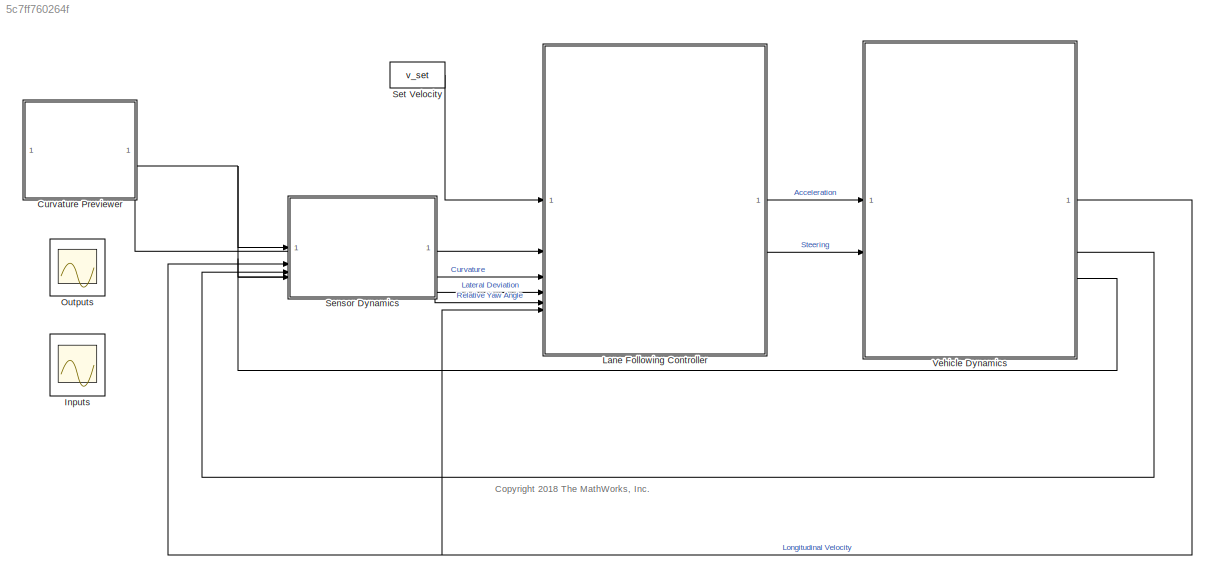
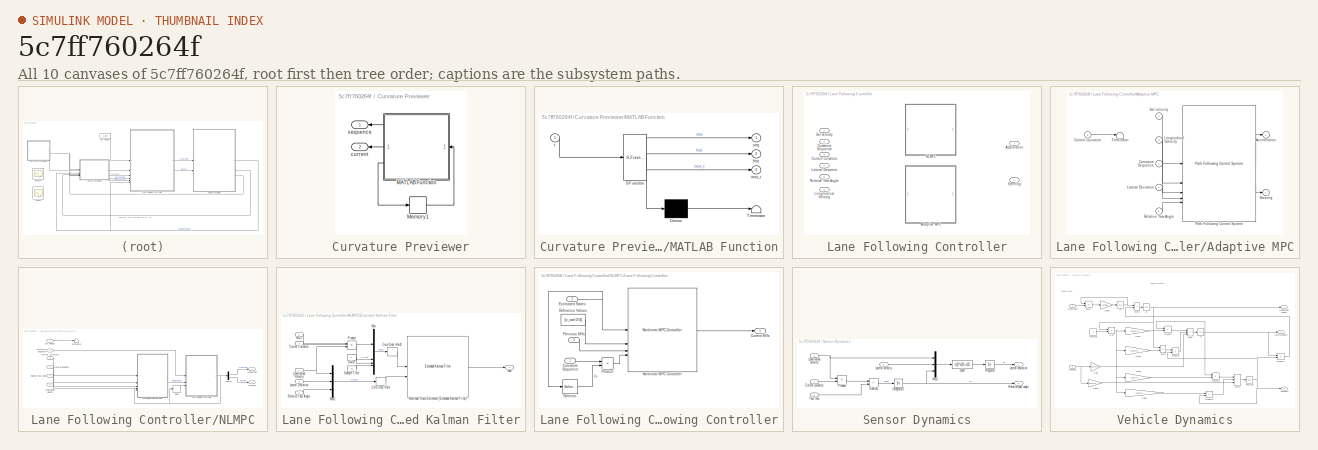
[diagram: thumbnail index - all 10 canvases of the model, root first then tree order]
MODEL slx_5c7ff760264f
KIND model
CONFIG AbsTol = auto
CONFIG EnableMultiTasking = off
CONFIG FixedStep = 0.1
CONFIG MaxStep = auto
CONFIG MinStep = auto
CONFIG PreLoadFcn = LaneFollowingUsingNMPCData
CONFIG RelTol = 1e-3
CONFIG SampleTimeConstraint = Unconstrained
CONFIG SolverName = VariableStepAuto
CONFIG StartTime = 0.0
CONFIG StopTime = Duration
BLOCK [SubSystem] Curvature Previewer
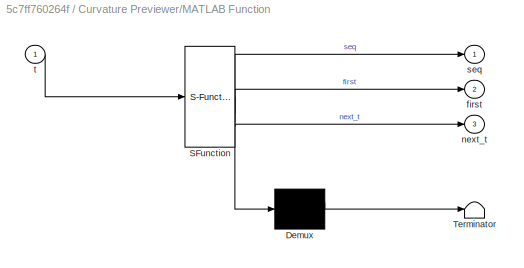
BLOCK [SubSystem] Curvature Previewer/MATLAB Function
  ErrorFcn = Stateflow.Translate.translate
  PermitHierarchicalResolution = ExplicitOnly
  SFBlockType = MATLAB Function
  TreatAsAtomicUnit = on
BLOCK [Demux] Curvature Previewer/MATLAB Function/ Demux 
  Outputs = 1
BLOCK [S-Function] Curvature Previewer/MATLAB Function/ SFunction 
  EnableBusSupport = off
  FunctionName = sf_sfun
  Parameters = data,steps
  PortCounts = [1 4]
  SFcnIsStateOwnerBlock = off
  SFunctionDeploymentMode = off
  Tag = Stateflow S-Function 1
BLOCK [Terminator] Curvature Previewer/MATLAB Function/ Terminator 
BLOCK [Outport] Curvature Previewer/MATLAB Function/first
  Port = 2
  VectorParamsAs1DForOutWhenUnconnected = off
BLOCK [Outport] Curvature Previewer/MATLAB Function/next_t
  Port = 3
  VectorParamsAs1DForOutWhenUnconnected = off
BLOCK [Outport] Curvature Previewer/MATLAB Function/seq
  VectorParamsAs1DForOutWhenUnconnected = off
BLOCK [Inport] Curvature Previewer/MATLAB Function/t
BLOCK [Memory] Curvature Previewer/Memory1
  InheritSampleTime = on
  LinearizeAsDelay = on
BLOCK [Outport] Curvature Previewer/current
  Port = 2
  VectorParamsAs1DForOutWhenUnconnected = off
BLOCK [Outport] Curvature Previewer/sequence
  VectorParamsAs1DForOutWhenUnconnected = off
BLOCK [Scope] Inputs
  Floating = on
  NumInputPorts = 1
  ScopeSpecificationString = Simulink.scopes.TimeScopeBlockCfg('CurrentConfiguration', extmgr.ConfigurationSet(extmgr.Configuration('Core','General UI',true),extmgr.Configuration('Core','Source UI',true),extmgr.Configuration('Sources','WiredSimulink',true,'DataLoggingVariableName','ScopeData1'),extmgr.Configuration('Visuals','Time Domain',true,'SerializedDisplays',{struct('MinYLimReal','-0.19396','MaxYLimReal','0.11266','YLab...<+2759ch>
BLOCK [SubSystem] Lane Following Controller
  Variant = on
BLOCK [Outport] Lane Following Controller/Acceleration
  VectorParamsAs1DForOutWhenUnconnected = off
BLOCK [SubSystem] Lane Following Controller/Adaptive MPC
  VariantControl = controller_type == 2
BLOCK [Outport] Lane Following Controller/Adaptive MPC/Acceleration
  VectorParamsAs1DForOutWhenUnconnected = off
BLOCK [Inport] Lane Following Controller/Adaptive MPC/Current Curvature
  Port = 3
BLOCK [Inport] Lane Following Controller/Adaptive MPC/Curvature Sequence
  Port = 2
BLOCK [Inport] Lane Following Controller/Adaptive MPC/Lateral Deviation
  Port = 4
BLOCK [Inport] Lane Following Controller/Adaptive MPC/Longitudinal Velocity
  Port = 6
BLOCK [Reference] Lane Following Controller/Adaptive MPC/Path Following Control System  REF=mpcadaslib/Path Following Control System
  SourceBlock = mpcadaslib/Path Following Control System
  SourceType = Path following control (PFC) system
BLOCK [Inport] Lane Following Controller/Adaptive MPC/Relative Yaw Angle
  Port = 5
BLOCK [Inport] Lane Following Controller/Adaptive MPC/Set velocity
BLOCK [Outport] Lane Following Controller/Adaptive MPC/Steering
  Port = 2
  VectorParamsAs1DForOutWhenUnconnected = off
BLOCK [Terminator] Lane Following Controller/Adaptive MPC/Terminator
BLOCK [Inport] Lane Following Controller/Current Curvature
  Port = 3
BLOCK [Inport] Lane Following Controller/Curvature Sequence
  Port = 2
BLOCK [Inport] Lane Following Controller/Lateral Deviation
  Port = 4
BLOCK [Inport] Lane Following Controller/Longitudinal Velocity
  Port = 6
BLOCK [SubSystem] Lane Following Controller/NLMPC
  VariantControl = controller_type ==1
BLOCK [Outport] Lane Following Controller/NLMPC/Acceleration
  VectorParamsAs1DForOutWhenUnconnected = off
BLOCK [Inport] Lane Following Controller/NLMPC/Current Curvature
  Port = 3
BLOCK [Inport] Lane Following Controller/NLMPC/Curvature Sequence
  Port = 2
BLOCK [Delay] Lane Following Controller/NLMPC/Delay
  DelayLength = 1
  InitialCondition = [0.2 0.3]
  InputPortMap = u0
BLOCK [Demux] Lane Following Controller/NLMPC/Demux
  Outputs = 2
BLOCK [SubSystem] Lane Following Controller/NLMPC/Extended Kalman Filter
BLOCK [Inport] Lane Following Controller/NLMPC/Extended Kalman Filter/Current Curvature
BLOCK [Inport] Lane Following Controller/NLMPC/Extended Kalman Filter/Lateral Deviation
  Port = 2
BLOCK [Inport] Lane Following Controller/NLMPC/Extended Kalman Filter/Longitudinal Velocity
  Port = 4
BLOCK [Inport] Lane Following Controller/NLMPC/Extended Kalman Filter/MVs
  Port = 5
BLOCK [Mux] Lane Following Controller/NLMPC/Extended Kalman Filter/Mux
  DisplayOption = bar
BLOCK [Mux] Lane Following Controller/NLMPC/Extended Kalman Filter/Mux1
  DisplayOption = bar
  Inputs = 3
BLOCK [Constant] Lane Following Controller/NLMPC/Extended Kalman Filter/Noise
  Value = 0
BLOCK [Reference] Lane Following Controller/NLMPC/Extended Kalman Filter/Nonlinear State Estimator (Extended Kalman Filter)  REF=sharedTrackingLibrary/Extended Kalman Filter
  NameLocation = top
  SourceBlock = sharedTrackingLibrary/Extended Kalman Filter
  SourceType = Extended Kalman Filter
BLOCK [Product] Lane Following Controller/NLMPC/Extended Kalman Filter/Product
BLOCK [Inport] Lane Following Controller/NLMPC/Extended Kalman Filter/Relative Yaw Angle
  Port = 3
BLOCK [Constant] Lane Following Controller/NLMPC/Extended Kalman Filter/Sample Time
  Value = Ts
BLOCK [ZeroOrderHold] Lane Following Controller/NLMPC/Extended Kalman Filter/Zero-Order Hold
  NameLocation = top
  SampleTime = Ts
BLOCK [ZeroOrderHold] Lane Following Controller/NLMPC/Extended Kalman Filter/Zero-Order Hold1
  NameLocation = top
  SampleTime = Ts
BLOCK [Outport] Lane Following Controller/NLMPC/Extended Kalman Filter/xhat
  VectorParamsAs1DForOutWhenUnconnected = off
BLOCK [SubSystem] Lane Following Controller/NLMPC/Lane Following Controller
BLOCK [Outport] Lane Following Controller/NLMPC/Lane Following Controller/Current MVs
  VectorParamsAs1DForOutWhenUnconnected = off
BLOCK [Inport] Lane Following Controller/NLMPC/Lane Following Controller/Curvature Sequence
BLOCK [Inport] Lane Following Controller/NLMPC/Lane Following Controller/Estimated States
  Port = 2
BLOCK [Reference] Lane Following Controller/NLMPC/Lane Following Controller/Nonlinear MPC Controller  REF=mpclib/Nonlinear MPC Controller  (lib defined in mdl_ae329e0e0455)
  SCDEnableBlockLinearizationSpecification = on
  SourceBlock = mpclib/Nonlinear MPC Controller
  SourceType = NonlinearMPC
BLOCK [Inport] Lane Following Controller/NLMPC/Lane Following Controller/Previous MVs
  Port = 3
BLOCK [Product] Lane Following Controller/NLMPC/Lane Following Controller/Product
BLOCK [Constant] Lane Following Controller/NLMPC/Lane Following Controller/Reference Values
  Value = [v_set 0 0]
  VectorParams1D = off
BLOCK [Selector] Lane Following Controller/NLMPC/Lane Following Controller/Selector
  IndexOptions = Index vector (dialog)
  Indices = [3]
  InputPortWidth = 7
  OutputSizes = 1
BLOCK [Inport] Lane Following Controller/NLMPC/Lateral Deviation
  Port = 4
BLOCK [Inport] Lane Following Controller/NLMPC/Longitudinal Velocity
  Port = 6
BLOCK [Inport] Lane Following Controller/NLMPC/Relative Yaw Angle
  Port = 5
BLOCK [Inport] Lane Following Controller/NLMPC/Set velocity
BLOCK [Outport] Lane Following Controller/NLMPC/Steering
  Port = 2
  VectorParamsAs1DForOutWhenUnconnected = off
BLOCK [Terminator] Lane Following Controller/NLMPC/Terminator
BLOCK [Inport] Lane Following Controller/Relative Yaw Angle
  Port = 5
BLOCK [Inport] Lane Following Controller/Set velocity
BLOCK [Outport] Lane Following Controller/Steering
  Port = 2
  VectorParamsAs1DForOutWhenUnconnected = off
BLOCK [Scope] Outputs
  Floating = on
  NumInputPorts = 1
  ScopeSpecificationString = Simulink.scopes.TimeScopeBlockCfg('CurrentConfiguration', extmgr.ConfigurationSet(extmgr.Configuration('Core','General UI',true),extmgr.Configuration('Core','Source UI',true),extmgr.Configuration('Sources','WiredSimulink',true),extmgr.Configuration('Visuals','Time Domain',true,'SerializedDisplays',{struct('MinYLimReal','14.34928','MaxYLimReal','20.85652','YLabelReal','','MinYLimMag','14.34928','Ma...<+2749ch>
BLOCK [SubSystem] Sensor Dynamics
BLOCK [Inport] Sensor Dynamics/Current curvature
BLOCK [Integrator] Sensor Dynamics/Integrator
BLOCK [Integrator] Sensor Dynamics/Integrator2
BLOCK [Outport] Sensor Dynamics/Lateral deviation
  VectorParamsAs1DForOutWhenUnconnected = off
BLOCK [Inport] Sensor Dynamics/Lateral velocity
  Port = 3
BLOCK [Inport] Sensor Dynamics/Longitudinal velocity
  Port = 2
BLOCK [Mux] Sensor Dynamics/Mux1
  DisplayOption = bar
  Inputs = [1 1 1]
BLOCK [Product] Sensor Dynamics/Product
BLOCK [Outport] Sensor Dynamics/Relative yaw angle
  Port = 2
  VectorParamsAs1DForOutWhenUnconnected = off
BLOCK [Sum] Sensor Dynamics/Subtract
  IconShape = rectangular
  Inputs = -+
BLOCK [Inport] Sensor Dynamics/Yaw rate
  Port = 4
BLOCK [Fcn] Sensor Dynamics/e1dot
  Expr = u(1)*u(3)+u(2)
BLOCK [Constant] Set Velocity
  Value = v_set
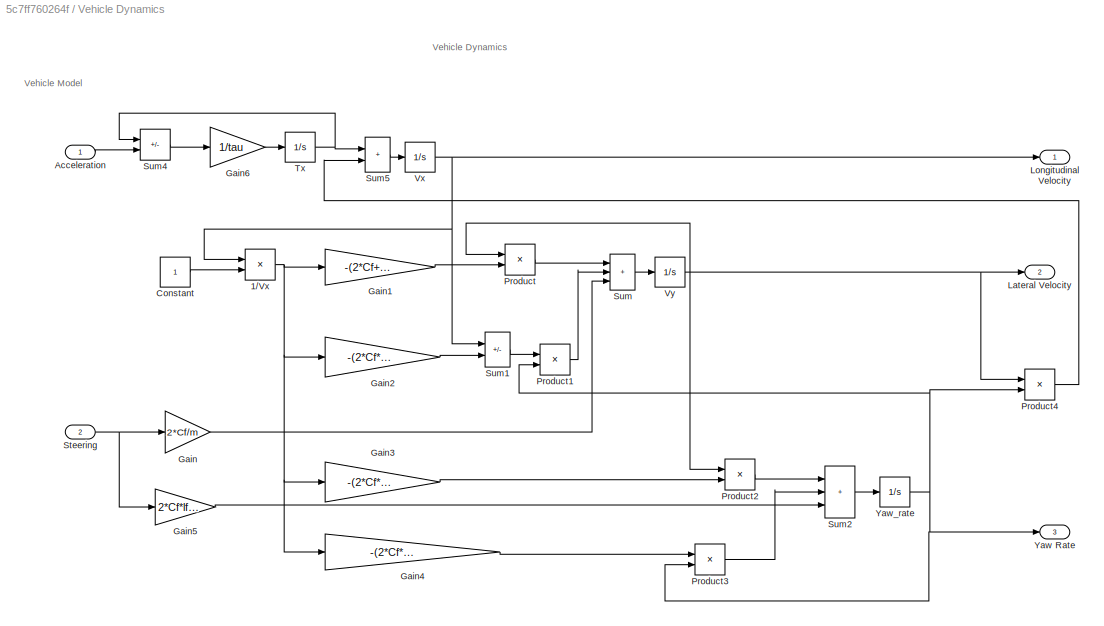
BLOCK [SubSystem] Vehicle Dynamics
BLOCK [Product] Vehicle Dynamics/1//Vx
  Inputs = /*
BLOCK [Inport] Vehicle Dynamics/Acceleration
BLOCK [Constant] Vehicle Dynamics/Constant
BLOCK [Gain] Vehicle Dynamics/Gain
  Gain = 2*Cf/m
BLOCK [Gain] Vehicle Dynamics/Gain1
  Gain = -(2*Cf+2*Cr)/m
BLOCK [Gain] Vehicle Dynamics/Gain2
  Gain = -(2*Cf*lf-2*Cr*lr)/m
BLOCK [Gain] Vehicle Dynamics/Gain3
  Gain = -(2*Cf*lf-2*Cr*lr)/Iz
BLOCK [Gain] Vehicle Dynamics/Gain4
  Gain = -(2*Cf*lf^2+2*Cr*lr^2)/Iz
BLOCK [Gain] Vehicle Dynamics/Gain5
  Gain = 2*Cf*lf/Iz
BLOCK [Gain] Vehicle Dynamics/Gain6
  Gain = 1/tau
BLOCK [Outport] Vehicle Dynamics/Lateral Velocity
  Port = 2
  VectorParamsAs1DForOutWhenUnconnected = off
BLOCK [Outport] Vehicle Dynamics/Longitudinal Velocity
  VectorParamsAs1DForOutWhenUnconnected = off
BLOCK [Product] Vehicle Dynamics/Product
BLOCK [Product] Vehicle Dynamics/Product1
BLOCK [Product] Vehicle Dynamics/Product2
BLOCK [Product] Vehicle Dynamics/Product3
BLOCK [Product] Vehicle Dynamics/Product4
BLOCK [Inport] Vehicle Dynamics/Steering
  Port = 2
BLOCK [Sum] Vehicle Dynamics/Sum
  IconShape = rectangular
  Inputs = +++
BLOCK [Sum] Vehicle Dynamics/Sum1
  IconShape = rectangular
  Inputs = -+
BLOCK [Sum] Vehicle Dynamics/Sum2
  IconShape = rectangular
  Inputs = +++
BLOCK [Sum] Vehicle Dynamics/Sum4
  IconShape = rectangular
  Inputs = -+
BLOCK [Sum] Vehicle Dynamics/Sum5
  IconShape = rectangular
BLOCK [Integrator] Vehicle Dynamics/Tx
BLOCK [Integrator] Vehicle Dynamics/Vx
  InitialCondition = v0
BLOCK [Integrator] Vehicle Dynamics/Vy
BLOCK [Outport] Vehicle Dynamics/Yaw Rate
  Port = 3
  VectorParamsAs1DForOutWhenUnconnected = off
BLOCK [Integrator] Vehicle Dynamics/Yaw_rate 
ANNOTATION (root): <copyright redacted>
ANNOTATION Vehicle Dynamics: Vehicle Dynamics
ANNOTATION Vehicle Dynamics: Vehicle Model
LINE Curvature Previewer/MATLAB Function:1 -> Curvature Previewer/sequence:1
LINE Curvature Previewer/MATLAB Function:2 -> Curvature Previewer/current:1
LINE Curvature Previewer/MATLAB Function:3 -> Curvature Previewer/Memory1:1
LINE Curvature Previewer/Memory1:1 -> Curvature Previewer/MATLAB Function:1
LINE Curvature Previewer:1 -> Lane Following Controller:2
NET Curvature Previewer:2 -> Lane Following Controller:3, Sensor Dynamics:1
LINE Lane Following Controller/Adaptive MPC/Current Curvature:1 -> Lane Following Controller/Adaptive MPC/Terminator:1
LINE Lane Following Controller/Adaptive MPC/Curvature Sequence:1 -> Lane Following Controller/Adaptive MPC/Path Following Control System:3
LINE Lane Following Controller/Adaptive MPC/Lateral Deviation:1 -> Lane Following Controller/Adaptive MPC/Path Following Control System:4
LINE Lane Following Controller/Adaptive MPC/Longitudinal Velocity:1 -> Lane Following Controller/Adaptive MPC/Path Following Control System:2
LINE Lane Following Controller/Adaptive MPC/Path Following Control System:1 -> Lane Following Controller/Adaptive MPC/Acceleration:1
LINE Lane Following Controller/Adaptive MPC/Path Following Control System:2 -> Lane Following Controller/Adaptive MPC/Steering:1
LINE Lane Following Controller/Adaptive MPC/Relative Yaw Angle:1 -> Lane Following Controller/Adaptive MPC/Path Following Control System:5
LINE Lane Following Controller/Adaptive MPC/Set velocity:1 -> Lane Following Controller/Adaptive MPC/Path Following Control System:1
LINE Lane Following Controller/NLMPC/Current Curvature:1 -> Lane Following Controller/NLMPC/Extended Kalman Filter:1
LINE Lane Following Controller/NLMPC/Curvature Sequence:1 -> Lane Following Controller/NLMPC/Lane Following Controller:1
LINE Lane Following Controller/NLMPC/Delay:1 -> Lane Following Controller/NLMPC/Lane Following Controller:3
LINE Lane Following Controller/NLMPC/Demux:1 -> Lane Following Controller/NLMPC/Acceleration:1
LINE Lane Following Controller/NLMPC/Demux:2 -> Lane Following Controller/NLMPC/Steering:1
LINE Lane Following Controller/NLMPC/Extended Kalman Filter/Current Curvature:1 -> Lane Following Controller/NLMPC/Extended Kalman Filter/Product:1
LINE Lane Following Controller/NLMPC/Extended Kalman Filter/Lateral Deviation:1 -> Lane Following Controller/NLMPC/Extended Kalman Filter/Mux1:2
NET Lane Following Controller/NLMPC/Extended Kalman Filter/Longitudinal Velocity:1 -> Lane Following Controller/NLMPC/Extended Kalman Filter/Mux1:1, Lane Following Controller/NLMPC/Extended Kalman Filter/Product:2
LINE Lane Following Controller/NLMPC/Extended Kalman Filter/MVs:1 -> Lane Following Controller/NLMPC/Extended Kalman Filter/Mux:1
LINE Lane Following Controller/NLMPC/Extended Kalman Filter/Mux1:1 -> Lane Following Controller/NLMPC/Extended Kalman Filter/Zero-Order Hold:1
LINE Lane Following Controller/NLMPC/Extended Kalman Filter/Mux:1 -> Lane Following Controller/NLMPC/Extended Kalman Filter/Zero-Order Hold1:1
LINE Lane Following Controller/NLMPC/Extended Kalman Filter/Noise:1 -> Lane Following Controller/NLMPC/Extended Kalman Filter/Mux:3
LINE Lane Following Controller/NLMPC/Extended Kalman Filter/Nonlinear State Estimator (Extended Kalman Filter):1 -> Lane Following Controller/NLMPC/Extended Kalman Filter/xhat:1
LINE Lane Following Controller/NLMPC/Extended Kalman Filter/Product:1 -> Lane Following Controller/NLMPC/Extended Kalman Filter/Mux:2
LINE Lane Following Controller/NLMPC/Extended Kalman Filter/Relative Yaw Angle:1 -> Lane Following Controller/NLMPC/Extended Kalman Filter/Mux1:3
LINE Lane Following Controller/NLMPC/Extended Kalman Filter/Sample Time:1 -> Lane Following Controller/NLMPC/Extended Kalman Filter/Mux:4
LINE Lane Following Controller/NLMPC/Extended Kalman Filter/Zero-Order Hold1:1 -> Lane Following Controller/NLMPC/Extended Kalman Filter/Nonlinear State Estimator (Extended Kalman Filter):1
LINE Lane Following Controller/NLMPC/Extended Kalman Filter/Zero-Order Hold:1 -> Lane Following Controller/NLMPC/Extended Kalman Filter/Nonlinear State Estimator (Extended Kalman Filter):2
LINE Lane Following Controller/NLMPC/Extended Kalman Filter:1 -> Lane Following Controller/NLMPC/Lane Following Controller:2
LINE Lane Following Controller/NLMPC/Lane Following Controller/Curvature Sequence:1 -> Lane Following Controller/NLMPC/Lane Following Controller/Product:1
NET Lane Following Controller/NLMPC/Lane Following Controller/Estimated States:1 -> Lane Following Controller/NLMPC/Lane Following Controller/Nonlinear MPC Controller:1, Lane Following Controller/NLMPC/Lane Following Controller/Selector:1
LINE Lane Following Controller/NLMPC/Lane Following Controller/Nonlinear MPC Controller:1 -> Lane Following Controller/NLMPC/Lane Following Controller/Current MVs:1
LINE Lane Following Controller/NLMPC/Lane Following Controller/Previous MVs:1 -> Lane Following Controller/NLMPC/Lane Following Controller/Nonlinear MPC Controller:3
LINE Lane Following Controller/NLMPC/Lane Following Controller/Product:1 -> Lane Following Controller/NLMPC/Lane Following Controller/Nonlinear MPC Controller:4
LINE Lane Following Controller/NLMPC/Lane Following Controller/Reference Values:1 -> Lane Following Controller/NLMPC/Lane Following Controller/Nonlinear MPC Controller:2
LINE Lane Following Controller/NLMPC/Lane Following Controller/Selector:1 -> Lane Following Controller/NLMPC/Lane Following Controller/Product:2
NET Lane Following Controller/NLMPC/Lane Following Controller:1 -> Lane Following Controller/NLMPC/Delay:1, Lane Following Controller/NLMPC/Demux:1, Lane Following Controller/NLMPC/Extended Kalman Filter:5
LINE Lane Following Controller/NLMPC/Lateral Deviation:1 -> Lane Following Controller/NLMPC/Extended Kalman Filter:2
LINE Lane Following Controller/NLMPC/Longitudinal Velocity:1 -> Lane Following Controller/NLMPC/Extended Kalman Filter:4
LINE Lane Following Controller/NLMPC/Relative Yaw Angle:1 -> Lane Following Controller/NLMPC/Extended Kalman Filter:3
LINE Lane Following Controller/NLMPC/Set velocity:1 -> Lane Following Controller/NLMPC/Terminator:1
LINE Lane Following Controller:1 -> Vehicle Dynamics:1
LINE Lane Following Controller:2 -> Vehicle Dynamics:2
LINE Sensor Dynamics/Current curvature:1 -> Sensor Dynamics/Product:2
NET Sensor Dynamics/Integrator2:1 -> Sensor Dynamics/Mux1:3, Sensor Dynamics/Relative yaw angle:1
LINE Sensor Dynamics/Integrator:1 -> Sensor Dynamics/Lateral deviation:1
LINE Sensor Dynamics/Lateral velocity:1 -> Sensor Dynamics/Mux1:2
NET Sensor Dynamics/Longitudinal velocity:1 -> Sensor Dynamics/Mux1:1, Sensor Dynamics/Product:1
LINE Sensor Dynamics/Mux1:1 -> Sensor Dynamics/e1dot:1
LINE Sensor Dynamics/Product:1 -> Sensor Dynamics/Subtract:1
LINE Sensor Dynamics/Subtract:1 -> Sensor Dynamics/Integrator2:1
LINE Sensor Dynamics/Yaw rate:1 -> Sensor Dynamics/Subtract:2
LINE Sensor Dynamics/e1dot:1 -> Sensor Dynamics/Integrator:1
LINE Sensor Dynamics:1 -> Lane Following Controller:4
LINE Sensor Dynamics:2 -> Lane Following Controller:5
LINE Set Velocity:1 -> Lane Following Controller:1
NET Vehicle Dynamics/1//Vx:1 -> Vehicle Dynamics/Gain1:1, Vehicle Dynamics/Gain2:1, Vehicle Dynamics/Gain3:1, Vehicle Dynamics/Gain4:1
LINE Vehicle Dynamics/Acceleration:1 -> Vehicle Dynamics/Sum4:2
LINE Vehicle Dynamics/Constant:1 -> Vehicle Dynamics/1//Vx:2
LINE Vehicle Dynamics/Gain1:1 -> Vehicle Dynamics/Product:2
LINE Vehicle Dynamics/Gain2:1 -> Vehicle Dynamics/Sum1:2
LINE Vehicle Dynamics/Gain3:1 -> Vehicle Dynamics/Product2:2
LINE Vehicle Dynamics/Gain4:1 -> Vehicle Dynamics/Product3:1
LINE Vehicle Dynamics/Gain5:1 -> Vehicle Dynamics/Sum2:3
LINE Vehicle Dynamics/Gain6:1 -> Vehicle Dynamics/Tx:1
LINE Vehicle Dynamics/Gain:1 -> Vehicle Dynamics/Sum:3
LINE Vehicle Dynamics/Product1:1 -> Vehicle Dynamics/Sum:2
LINE Vehicle Dynamics/Product2:1 -> Vehicle Dynamics/Sum2:1
LINE Vehicle Dynamics/Product3:1 -> Vehicle Dynamics/Sum2:2
LINE Vehicle Dynamics/Product4:1 -> Vehicle Dynamics/Sum5:2
LINE Vehicle Dynamics/Product:1 -> Vehicle Dynamics/Sum:1
NET Vehicle Dynamics/Steering:1 -> Vehicle Dynamics/Gain5:1, Vehicle Dynamics/Gain:1
LINE Vehicle Dynamics/Sum1:1 -> Vehicle Dynamics/Product1:1
LINE Vehicle Dynamics/Sum2:1 -> Vehicle Dynamics/Yaw_rate :1
LINE Vehicle Dynamics/Sum4:1 -> Vehicle Dynamics/Gain6:1
LINE Vehicle Dynamics/Sum5:1 -> Vehicle Dynamics/Vx:1
LINE Vehicle Dynamics/Sum:1 -> Vehicle Dynamics/Vy:1
NET Vehicle Dynamics/Tx:1 -> Vehicle Dynamics/Sum4:1, Vehicle Dynamics/Sum5:1
NET Vehicle Dynamics/Vx:1 -> Vehicle Dynamics/1//Vx:1, Vehicle Dynamics/Longitudinal Velocity:1, Vehicle Dynamics/Sum1:1
NET Vehicle Dynamics/Vy:1 -> Vehicle Dynamics/Lateral Velocity:1, Vehicle Dynamics/Product2:1, Vehicle Dynamics/Product4:1, Vehicle Dynamics/Product:1
NET Vehicle Dynamics/Yaw_rate :1 -> Vehicle Dynamics/Product1:2, Vehicle Dynamics/Product3:2, Vehicle Dynamics/Product4:2, Vehicle Dynamics/Yaw Rate:1
NET Vehicle Dynamics:1 -> Lane Following Controller:6, Sensor Dynamics:2
LINE Vehicle Dynamics:2 -> Sensor Dynamics:3
LINE Vehicle Dynamics:3 -> Sensor Dynamics:4
note: NET lines group one-source signal fan-out (src -> all destinations, sorted); 1:1 wires keep LINE
CHART Curvature Previewer/MATLAB Function states=1 transitions=1
  STATE_LABEL 'eML_blk_kernel()'
  STATE_LABEL "SCRIPT:\nfunction [seq,first,next_t] = fcn(data,steps,t)\n%#codegen\n[seq,first,next_t] = mpcblock_preview('md',data,steps,t);"
CHART  states=0 transitions=0
